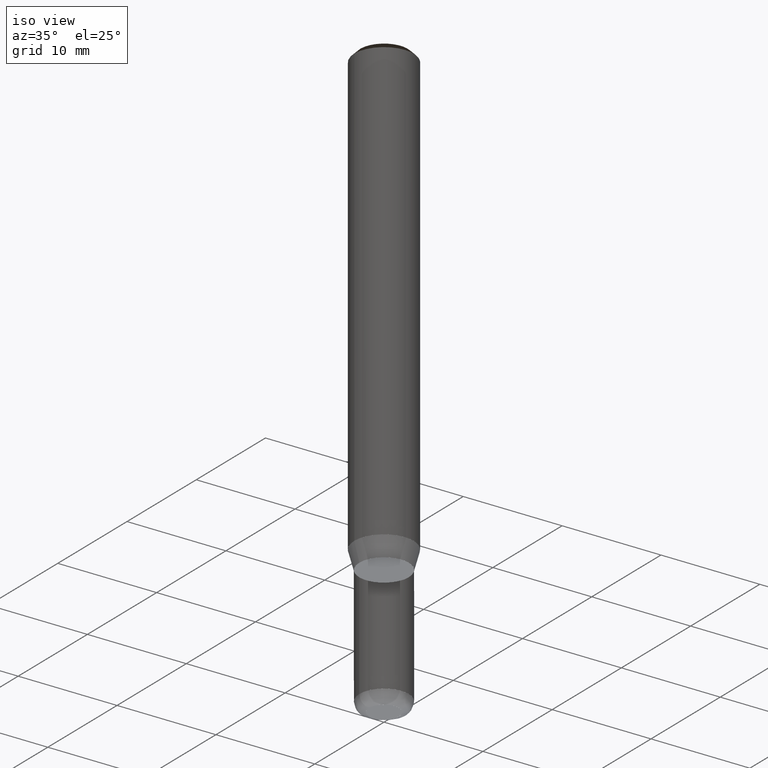
[diagram: clean part render]
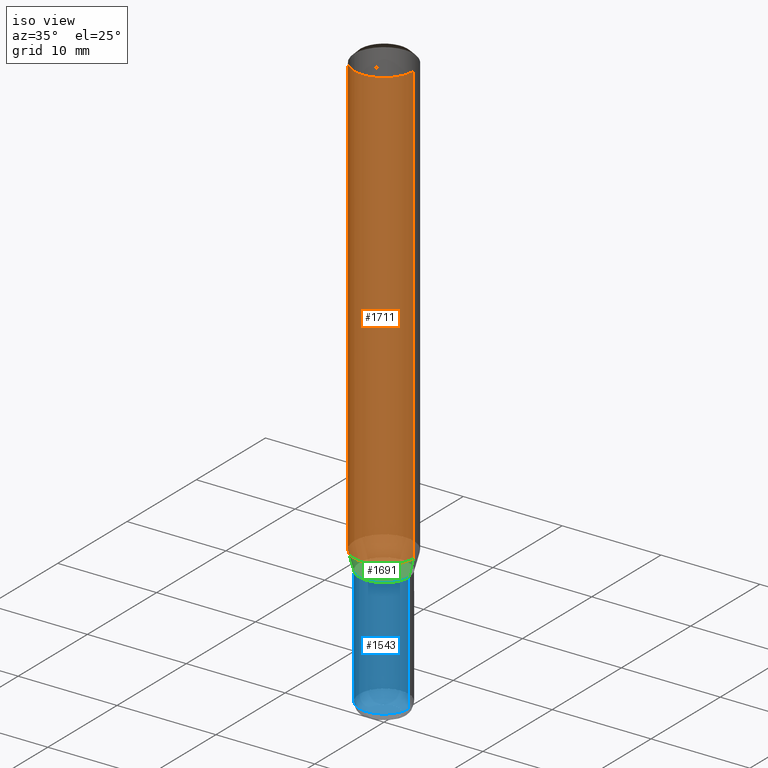
[diagram: same view with three faces highlighted in distinct colors, each labeled with its STEP entity id]
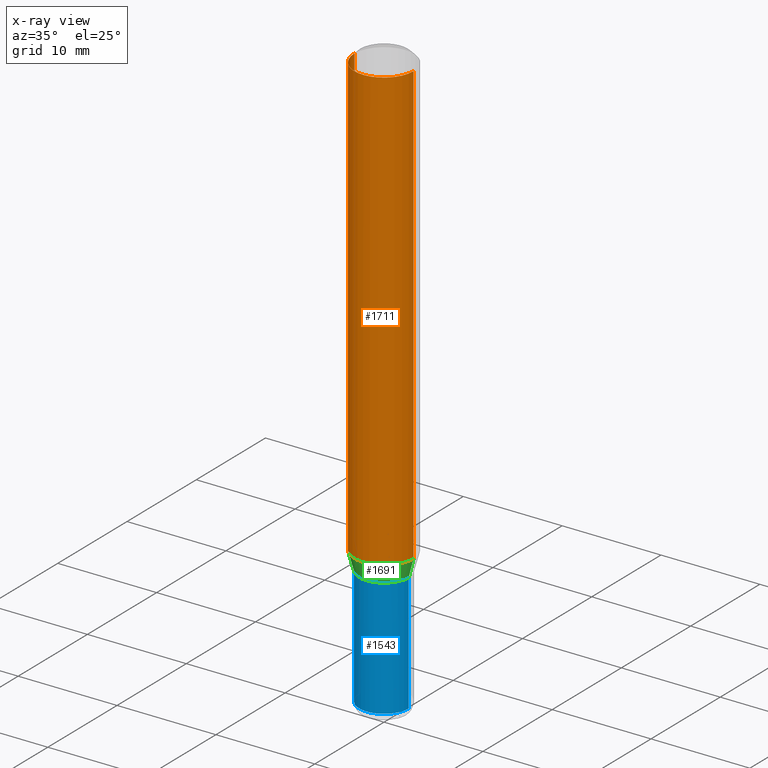
[diagram: x-ray of the same camera — body ghosted, the three highlighted faces saturated]
A machine part, iso view with three faces highlighted in distinct colors.
The next image is the same camera in x-ray (body ghosted, the three faces saturated) — at least one of them is partly hidden behind the body in this view.
Their STEP definitions:

[orange] entity #1711 — the highlighted face is a freeform B-spline surface patch.
#1382=CARTESIAN_POINT('',(3.0,0.0,0.0));
#1386=CARTESIAN_POINT('',(-3.0,0.0,0.0));
#1387=CARTESIAN_POINT('',(3.0,0.0,44.533974596216));
#1391=CARTESIAN_POINT('',(-3.0,0.0,44.533974596216));
#1398=CARTESIAN_POINT('',(-3.0,-3.0,0.0));
#1399=CARTESIAN_POINT('',(0.0,-3.0,0.0));
#1400=CARTESIAN_POINT('',(3.0,-3.0,0.0));
#1401=CARTESIAN_POINT('',(-3.0,-3.0,44.533974596216));
#1402=CARTESIAN_POINT('',(0.0,-3.0,44.533974596216));
#1403=CARTESIAN_POINT('',(3.0,-3.0,44.533974596216));
#1692=(
BOUNDED_SURFACE()
B_SPLINE_SURFACE(1,2,(
(#1386,#1398,#1399,#1400,#1382),
(#1391,#1401,#1402,#1403,#1387)
), .UNSPECIFIED.,.F.,.F.,.F.)
B_SPLINE_SURFACE_WITH_KNOTS((2,2),(3,2,3),(
0.0,1.0),(
0.0,0.5,1.0), .UNSPECIFIED.)
GEOMETRIC_REPRESENTATION_ITEM()
RATIONAL_B_SPLINE_SURFACE(((1.0,0.707106781187,1.0,0.707106781187,1.0),
(1.0,0.707106781187,1.0,0.707106781187,1.0)
))
REPRESENTATION_ITEM('')
SURFACE()
);
#1693=(
BOUNDED_CURVE()
B_SPLINE_CURVE(1,(#1391,#1386),.UNSPECIFIED.,.F.,.F.)
B_SPLINE_CURVE_WITH_KNOTS((2,2),
(0.0,1.0),.UNSPECIFIED.)
CURVE()
GEOMETRIC_REPRESENTATION_ITEM()
RATIONAL_B_SPLINE_CURVE((1.0,1.0))
REPRESENTATION_ITEM('')
);
#1694=(
BOUNDED_CURVE()
B_SPLINE_CURVE(2,(#1386,#1398,#1399,#1400,#1382),.UNSPECIFIED.,.F.,.F.)
B_SPLINE_CURVE_WITH_KNOTS((3,2,3),
(0.0,0.5,1.0),.UNSPECIFIED.)
CURVE()
GEOMETRIC_REPRESENTATION_ITEM()
RATIONAL_B_SPLINE_CURVE((1.0,0.707106781187,1.0,0.707106781187,1.0))
REPRESENTATION_ITEM('')
);
#1695=(
BOUNDED_CURVE()
B_SPLINE_CURVE(1,(#1382,#1387),.UNSPECIFIED.,.F.,.F.)
B_SPLINE_CURVE_WITH_KNOTS((2,2),
(0.0,1.0),.UNSPECIFIED.)
CURVE()
GEOMETRIC_REPRESENTATION_ITEM()
RATIONAL_B_SPLINE_CURVE((1.0,1.0))
REPRESENTATION_ITEM('')
);
#1696=(
BOUNDED_CURVE()
B_SPLINE_CURVE(2,(#1387,#1403,#1402,#1401,#1391),.UNSPECIFIED.,.F.,.F.)
B_SPLINE_CURVE_WITH_KNOTS((3,2,3),
(0.0,0.5,1.0),.UNSPECIFIED.)
CURVE()
GEOMETRIC_REPRESENTATION_ITEM()
RATIONAL_B_SPLINE_CURVE((1.0,0.707106781187,1.0,0.707106781187,1.0))
REPRESENTATION_ITEM('')
);
#1697=VERTEX_POINT('',#1382);
#1698=VERTEX_POINT('',#1386);
#1699=VERTEX_POINT('',#1387);
#1700=VERTEX_POINT('',#1391);
#1701=EDGE_CURVE('',#1700,#1698,#1693,.T.);
#1702=EDGE_CURVE('',#1698,#1697,#1694,.T.);
#1703=EDGE_CURVE('',#1697,#1699,#1695,.T.);
#1704=EDGE_CURVE('',#1699,#1700,#1696,.T.);
#1705=ORIENTED_EDGE('',*,*,#1701,.T.);
#1706=ORIENTED_EDGE('',*,*,#1702,.T.);
#1707=ORIENTED_EDGE('',*,*,#1703,.T.);
#1708=ORIENTED_EDGE('',*,*,#1704,.T.);
#1709=EDGE_LOOP('',(#1705,#1706,#1707,#1708));
#1710=FACE_OUTER_BOUND('',#1709,.T.);
#1711=ADVANCED_FACE('',(#1710),#1692,.T.);

[blue] entity #1543 — the highlighted face is a freeform B-spline surface patch.
#1353=CARTESIAN_POINT('',(2.5,0.0,-13.866025403784));
#1357=CARTESIAN_POINT('',(-2.5,0.0,-13.866025403784));
#1358=CARTESIAN_POINT('',(2.5,0.0,-1.866025403784));
#1362=CARTESIAN_POINT('',(-2.5,0.0,-1.866025403784));
#1376=CARTESIAN_POINT('',(-2.5,-2.5,-13.866025403784));
#1377=CARTESIAN_POINT('',(0.0,-2.5,-13.866025403784));
#1378=CARTESIAN_POINT('',(2.5,-2.5,-13.866025403784));
#1379=CARTESIAN_POINT('',(-2.5,-2.5,-1.866025403784));
#1380=CARTESIAN_POINT('',(0.0,-2.5,-1.866025403784));
#1381=CARTESIAN_POINT('',(2.5,-2.5,-1.866025403784));
#1524=(
BOUNDED_SURFACE()
B_SPLINE_SURFACE(1,2,(
(#1357,#1376,#1377,#1378,#1353),
(#1362,#1379,#1380,#1381,#1358)
), .UNSPECIFIED.,.F.,.F.,.F.)
B_SPLINE_SURFACE_WITH_KNOTS((2,2),(3,2,3),(
0.0,1.0),(
0.0,0.5,1.0), .UNSPECIFIED.)
GEOMETRIC_REPRESENTATION_ITEM()
RATIONAL_B_SPLINE_SURFACE(((1.0,0.707106781187,1.0,0.707106781187,1.0),
(1.0,0.707106781187,1.0,0.707106781187,1.0)
))
REPRESENTATION_ITEM('')
SURFACE()
);
#1525=(
BOUNDED_CURVE()
B_SPLINE_CURVE(1,(#1362,#1357),.UNSPECIFIED.,.F.,.F.)
B_SPLINE_CURVE_WITH_KNOTS((2,2),
(0.0,1.0),.UNSPECIFIED.)
CURVE()
GEOMETRIC_REPRESENTATION_ITEM()
RATIONAL_B_SPLINE_CURVE((1.0,1.0))
REPRESENTATION_ITEM('')
);
#1526=(
BOUNDED_CURVE()
B_SPLINE_CURVE(2,(#1357,#1376,#1377,#1378,#1353),.UNSPECIFIED.,.F.,.F.)
B_SPLINE_CURVE_WITH_KNOTS((3,2,3),
(0.0,0.5,1.0),.UNSPECIFIED.)
CURVE()
GEOMETRIC_REPRESENTATION_ITEM()
RATIONAL_B_SPLINE_CURVE((1.0,0.707106781187,1.0,0.707106781187,1.0))
REPRESENTATION_ITEM('')
);
#1527=(
BOUNDED_CURVE()
B_SPLINE_CURVE(1,(#1353,#1358),.UNSPECIFIED.,.F.,.F.)
B_SPLINE_CURVE_WITH_KNOTS((2,2),
(0.0,1.0),.UNSPECIFIED.)
CURVE()
GEOMETRIC_REPRESENTATION_ITEM()
RATIONAL_B_SPLINE_CURVE((1.0,1.0))
REPRESENTATION_ITEM('')
);
#1528=(
BOUNDED_CURVE()
B_SPLINE_CURVE(2,(#1358,#1381,#1380,#1379,#1362),.UNSPECIFIED.,.F.,.F.)
B_SPLINE_CURVE_WITH_KNOTS((3,2,3),
(0.0,0.5,1.0),.UNSPECIFIED.)
CURVE()
GEOMETRIC_REPRESENTATION_ITEM()
RATIONAL_B_SPLINE_CURVE((1.0,0.707106781187,1.0,0.707106781187,1.0))
REPRESENTATION_ITEM('')
);
#1529=VERTEX_POINT('',#1353);
#1530=VERTEX_POINT('',#1357);
#1531=VERTEX_POINT('',#1358);
#1532=VERTEX_POINT('',#1362);
#1533=EDGE_CURVE('',#1532,#1530,#1525,.T.);
#1534=EDGE_CURVE('',#1530,#1529,#1526,.T.);
#1535=EDGE_CURVE('',#1529,#1531,#1527,.T.);
#1536=EDGE_CURVE('',#1531,#1532,#1528,.T.);
#1537=ORIENTED_EDGE('',*,*,#1533,.T.);
#1538=ORIENTED_EDGE('',*,*,#1534,.T.);
#1539=ORIENTED_EDGE('',*,*,#1535,.T.);
#1540=ORIENTED_EDGE('',*,*,#1536,.T.);
#1541=EDGE_LOOP('',(#1537,#1538,#1539,#1540));
#1542=FACE_OUTER_BOUND('',#1541,.T.);
#1543=ADVANCED_FACE('',(#1542),#1524,.T.);

[green] entity #1691 — the highlighted face is a freeform B-spline surface patch.
#1358=CARTESIAN_POINT('',(2.5,0.0,-1.866025403784));
#1362=CARTESIAN_POINT('',(-2.5,0.0,-1.866025403784));
#1379=CARTESIAN_POINT('',(-2.5,-2.5,-1.866025403784));
#1380=CARTESIAN_POINT('',(0.0,-2.5,-1.866025403784));
#1381=CARTESIAN_POINT('',(2.5,-2.5,-1.866025403784));
#1382=CARTESIAN_POINT('',(3.0,0.0,0.0));
#1386=CARTESIAN_POINT('',(-3.0,0.0,0.0));
#1398=CARTESIAN_POINT('',(-3.0,-3.0,0.0));
#1399=CARTESIAN_POINT('',(0.0,-3.0,0.0));
#1400=CARTESIAN_POINT('',(3.0,-3.0,0.0));
#1672=(
BOUNDED_SURFACE()
B_SPLINE_SURFACE(1,2,(
(#1362,#1379,#1380,#1381,#1358),
(#1386,#1398,#1399,#1400,#1382)
), .UNSPECIFIED.,.F.,.F.,.F.)
B_SPLINE_SURFACE_WITH_KNOTS((2,2),(3,2,3),(
0.0,1.0),(
0.0,0.5,1.0), .UNSPECIFIED.)
GEOMETRIC_REPRESENTATION_ITEM()
RATIONAL_B_SPLINE_SURFACE(((1.0,0.707106781187,1.0,0.707106781187,1.0),
(1.0,0.707106781187,1.0,0.707106781187,1.0)
))
REPRESENTATION_ITEM('')
SURFACE()
);
#1673=(
BOUNDED_CURVE()
B_SPLINE_CURVE(1,(#1386,#1362),.UNSPECIFIED.,.F.,.F.)
B_SPLINE_CURVE_WITH_KNOTS((2,2),
(0.0,1.0),.UNSPECIFIED.)
CURVE()
GEOMETRIC_REPRESENTATION_ITEM()
RATIONAL_B_SPLINE_CURVE((1.0,1.0))
REPRESENTATION_ITEM('')
);
#1674=(
BOUNDED_CURVE()
B_SPLINE_CURVE(2,(#1362,#1379,#1380,#1381,#1358),.UNSPECIFIED.,.F.,.F.)
B_SPLINE_CURVE_WITH_KNOTS((3,2,3),
(0.0,0.5,1.0),.UNSPECIFIED.)
CURVE()
GEOMETRIC_REPRESENTATION_ITEM()
RATIONAL_B_SPLINE_CURVE((1.0,0.707106781187,1.0,0.707106781187,1.0))
REPRESENTATION_ITEM('')
);
#1675=(
BOUNDED_CURVE()
B_SPLINE_CURVE(1,(#1358,#1382),.UNSPECIFIED.,.F.,.F.)
B_SPLINE_CURVE_WITH_KNOTS((2,2),
(0.0,1.0),.UNSPECIFIED.)
CURVE()
GEOMETRIC_REPRESENTATION_ITEM()
RATIONAL_B_SPLINE_CURVE((1.0,1.0))
REPRESENTATION_ITEM('')
);
#1676=(
BOUNDED_CURVE()
B_SPLINE_CURVE(2,(#1382,#1400,#1399,#1398,#1386),.UNSPECIFIED.,.F.,.F.)
B_SPLINE_CURVE_WITH_KNOTS((3,2,3),
(0.0,0.5,1.0),.UNSPECIFIED.)
CURVE()
GEOMETRIC_REPRESENTATION_ITEM()
RATIONAL_B_SPLINE_CURVE((1.0,0.707106781187,1.0,0.707106781187,1.0))
REPRESENTATION_ITEM('')
);
#1677=VERTEX_POINT('',#1358);
#1678=VERTEX_POINT('',#1362);
#1679=VERTEX_POINT('',#1382);
#1680=VERTEX_POINT('',#1386);
#1681=EDGE_CURVE('',#1680,#1678,#1673,.T.);
#1682=EDGE_CURVE('',#1678,#1677,#1674,.T.);
#1683=EDGE_CURVE('',#1677,#1679,#1675,.T.);
#1684=EDGE_CURVE('',#1679,#1680,#1676,.T.);
#1685=ORIENTED_EDGE('',*,*,#1681,.T.);
#1686=ORIENTED_EDGE('',*,*,#1682,.T.);
#1687=ORIENTED_EDGE('',*,*,#1683,.T.);
#1688=ORIENTED_EDGE('',*,*,#1684,.T.);
#1689=EDGE_LOOP('',(#1685,#1686,#1687,#1688));
#1690=FACE_OUTER_BOUND('',#1689,.T.);
#1691=ADVANCED_FACE('',(#1690),#1672,.T.);